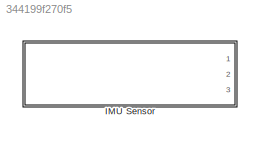
MODEL slx_344199f270f5
KIND library
CONFIG AbsTol = auto
CONFIG EnableMultiTasking = off
CONFIG FixedStep = auto
CONFIG MaxStep = auto
CONFIG MinStep = auto
CONFIG RelTol = 1e-3
CONFIG SampleTimeConstraint = Unconstrained
CONFIG Solver = VariableStepAuto
CONFIG SolverName = VariableStepAuto
CONFIG StartTime = 0.0
CONFIG StopTime = 10.0
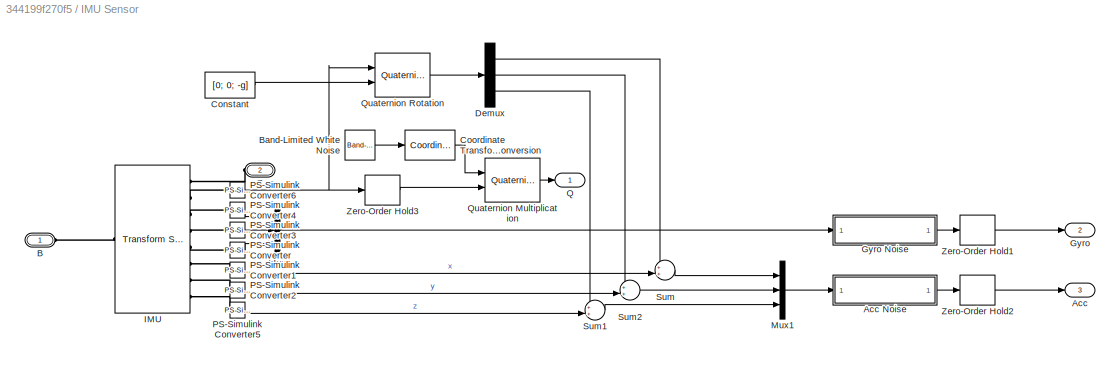
BLOCK [SubSystem] IMU Sensor
  Ports = [0, 3, 0, 0, 0, 2]
  RequestExecContextInheritance = off
BLOCK [Outport] IMU Sensor/Acc
  IconDisplay = Port number
  Port = 3
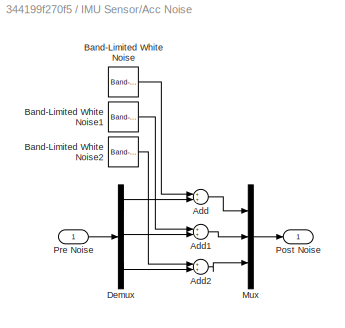
BLOCK [SubSystem] IMU Sensor/Acc Noise
  Commented = through
  Ports = [1, 1]
  RequestExecContextInheritance = off
BLOCK [Sum] IMU Sensor/Acc Noise/Add
  InputSameDT = off
  Inputs = 2
  OutDataTypeStr = Inherit: Inherit via internal rule
  Ports = [2, 1]
  SaturateOnIntegerOverflow = off
BLOCK [Sum] IMU Sensor/Acc Noise/Add1
  InputSameDT = off
  Inputs = 2
  OutDataTypeStr = Inherit: Inherit via internal rule
  Ports = [2, 1]
  SaturateOnIntegerOverflow = off
BLOCK [Sum] IMU Sensor/Acc Noise/Add2
  InputSameDT = off
  Inputs = 2
  OutDataTypeStr = Inherit: Inherit via internal rule
  Ports = [2, 1]
  SaturateOnIntegerOverflow = off
BLOCK [Reference] IMU Sensor/Acc Noise/Band-Limited White Noise  REF=simulink/Sources/Band-Limited
White Noise
  Ports = [0, 1]
  SourceBlock = simulink/Sources/Band-Limited\nWhite Noise
  SourceProductBaseCode = SL
  SourceProductName = Simulink
  SourceType = Band-Limited White Noise.
BLOCK [Reference] IMU Sensor/Acc Noise/Band-Limited White Noise1  REF=simulink/Sources/Band-Limited
White Noise
  Ports = [0, 1]
  SourceBlock = simulink/Sources/Band-Limited\nWhite Noise
  SourceProductBaseCode = SL
  SourceProductName = Simulink
  SourceType = Band-Limited White Noise.
BLOCK [Reference] IMU Sensor/Acc Noise/Band-Limited White Noise2  REF=simulink/Sources/Band-Limited
White Noise
  Ports = [0, 1]
  SourceBlock = simulink/Sources/Band-Limited\nWhite Noise
  SourceProductBaseCode = SL
  SourceProductName = Simulink
  SourceType = Band-Limited White Noise.
BLOCK [Demux] IMU Sensor/Acc Noise/Demux
  DisplayOption = bar
  Outputs = 3
  Ports = [1, 3]
BLOCK [Mux] IMU Sensor/Acc Noise/Mux
  DisplayOption = bar
  Inputs = 3
  Ports = [3, 1]
BLOCK [Outport] IMU Sensor/Acc Noise/Post Noise
  IconDisplay = Port number
BLOCK [Inport] IMU Sensor/Acc Noise/Pre Noise
  IconDisplay = Port number
BLOCK [PMIOPort] IMU Sensor/B
  Side = Left
BLOCK [Reference] IMU Sensor/Band-Limited White Noise  REF=simulink/Sources/Band-Limited
White Noise
  Ports = [0, 1]
  SourceBlock = simulink/Sources/Band-Limited\nWhite Noise
  SourceProductBaseCode = SL
  SourceProductName = Simulink
  SourceType = Band-Limited White Noise.
BLOCK [Constant] IMU Sensor/Constant
  Value = [0; 0; -g]
BLOCK [Reference] IMU Sensor/Coordinate Transformation Conversion  REF=robotcorelib/Coordinate Transformation Conversion
  Ports = [1, 1]
  SourceBlock = robotcorelib/Coordinate Transformation Conversion
  SourceProductBaseCode = RO
  SourceProductName = Robotics System Toolbox
  SourceType = robotics.slcore.internal.block.CoordinateTransformationConversion
BLOCK [Demux] IMU Sensor/Demux
  DisplayOption = bar
  Outputs = 3
  Ports = [1, 3]
BLOCK [PMIOPort] IMU Sensor/F
  Port = 2
  Side = Left
BLOCK [Outport] IMU Sensor/Gyro
  IconDisplay = Port number
  Port = 2
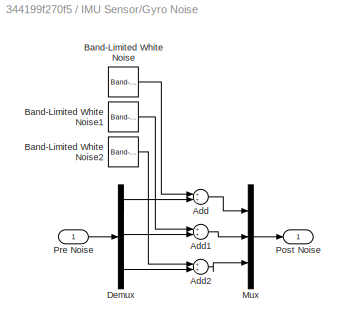
BLOCK [SubSystem] IMU Sensor/Gyro Noise
  Commented = through
  Ports = [1, 1]
  RequestExecContextInheritance = off
BLOCK [Sum] IMU Sensor/Gyro Noise/Add
  InputSameDT = off
  Inputs = 2
  OutDataTypeStr = Inherit: Inherit via internal rule
  Ports = [2, 1]
  SaturateOnIntegerOverflow = off
BLOCK [Sum] IMU Sensor/Gyro Noise/Add1
  InputSameDT = off
  Inputs = 2
  OutDataTypeStr = Inherit: Inherit via internal rule
  Ports = [2, 1]
  SaturateOnIntegerOverflow = off
BLOCK [Sum] IMU Sensor/Gyro Noise/Add2
  InputSameDT = off
  Inputs = 2
  OutDataTypeStr = Inherit: Inherit via internal rule
  Ports = [2, 1]
  SaturateOnIntegerOverflow = off
BLOCK [Reference] IMU Sensor/Gyro Noise/Band-Limited White Noise  REF=simulink/Sources/Band-Limited
White Noise
  Ports = [0, 1]
  SourceBlock = simulink/Sources/Band-Limited\nWhite Noise
  SourceProductBaseCode = SL
  SourceProductName = Simulink
  SourceType = Band-Limited White Noise.
BLOCK [Reference] IMU Sensor/Gyro Noise/Band-Limited White Noise1  REF=simulink/Sources/Band-Limited
White Noise
  Ports = [0, 1]
  SourceBlock = simulink/Sources/Band-Limited\nWhite Noise
  SourceProductBaseCode = SL
  SourceProductName = Simulink
  SourceType = Band-Limited White Noise.
BLOCK [Reference] IMU Sensor/Gyro Noise/Band-Limited White Noise2  REF=simulink/Sources/Band-Limited
White Noise
  Ports = [0, 1]
  SourceBlock = simulink/Sources/Band-Limited\nWhite Noise
  SourceProductBaseCode = SL
  SourceProductName = Simulink
  SourceType = Band-Limited White Noise.
BLOCK [Demux] IMU Sensor/Gyro Noise/Demux
  DisplayOption = bar
  Outputs = 3
  Ports = [1, 3]
BLOCK [Mux] IMU Sensor/Gyro Noise/Mux
  DisplayOption = bar
  Inputs = 3
  Ports = [3, 1]
BLOCK [Outport] IMU Sensor/Gyro Noise/Post Noise
  IconDisplay = Port number
BLOCK [Inport] IMU Sensor/Gyro Noise/Pre Noise
  IconDisplay = Port number
BLOCK [Reference] IMU Sensor/IMU  REF=sm_lib/Frames and
Transforms/Transform
Sensor
  Ports = [0, 0, 0, 0, 0, 1, 8]
  SourceBlock = sm_lib/Frames and\nTransforms/Transform\nSensor
  SourceProductBaseCode = MS
  SourceProductName = Simscape Multibody
  SourceType = Transform\nSensor
BLOCK [Mux] IMU Sensor/Mux
  DisplayOption = bar
  Inputs = 3
  Ports = [3, 1]
BLOCK [Mux] IMU Sensor/Mux1
  DisplayOption = bar
  Inputs = 3
  Ports = [3, 1]
BLOCK [Reference] IMU Sensor/PS-Simulink Converter  REF=nesl_utility/PS-Simulink
Converter
  Ports = [0, 1, 0, 0, 0, 1]
  SourceBlock = nesl_utility/PS-Simulink\nConverter
  SourceProductBaseCode = SS
  SourceProductName = Simscape
  SourceType = PS-Simulink\nConverter
BLOCK [Reference] IMU Sensor/PS-Simulink Converter1  REF=nesl_utility/PS-Simulink
Converter
  Ports = [0, 1, 0, 0, 0, 1]
  SourceBlock = nesl_utility/PS-Simulink\nConverter
  SourceProductBaseCode = SS
  SourceProductName = Simscape
  SourceType = PS-Simulink\nConverter
BLOCK [Reference] IMU Sensor/PS-Simulink Converter2  REF=nesl_utility/PS-Simulink
Converter
  Ports = [0, 1, 0, 0, 0, 1]
  SourceBlock = nesl_utility/PS-Simulink\nConverter
  SourceProductBaseCode = SS
  SourceProductName = Simscape
  SourceType = PS-Simulink\nConverter
BLOCK [Reference] IMU Sensor/PS-Simulink Converter3  REF=nesl_utility/PS-Simulink
Converter
  Ports = [0, 1, 0, 0, 0, 1]
  SourceBlock = nesl_utility/PS-Simulink\nConverter
  SourceProductBaseCode = SS
  SourceProductName = Simscape
  SourceType = PS-Simulink\nConverter
BLOCK [Reference] IMU Sensor/PS-Simulink Converter4  REF=nesl_utility/PS-Simulink
Converter
  Ports = [0, 1, 0, 0, 0, 1]
  SourceBlock = nesl_utility/PS-Simulink\nConverter
  SourceProductBaseCode = SS
  SourceProductName = Simscape
  SourceType = PS-Simulink\nConverter
BLOCK [Reference] IMU Sensor/PS-Simulink Converter5  REF=nesl_utility/PS-Simulink
Converter
  Ports = [0, 1, 0, 0, 0, 1]
  SourceBlock = nesl_utility/PS-Simulink\nConverter
  SourceProductBaseCode = SS
  SourceProductName = Simscape
  SourceType = PS-Simulink\nConverter
BLOCK [Reference] IMU Sensor/PS-Simulink Converter6  REF=nesl_utility/PS-Simulink
Converter
  Ports = [0, 1, 0, 0, 0, 1]
  SourceBlock = nesl_utility/PS-Simulink\nConverter
  SourceProductBaseCode = SS
  SourceProductName = Simscape
  SourceType = PS-Simulink\nConverter
BLOCK [Outport] IMU Sensor/Q
  IconDisplay = Port number
BLOCK [Reference] IMU Sensor/Quaternion Multiplication  REF=aerolibutil/Quaternion
Multiplication
  Ports = [2, 1]
  SourceBlock = aerolibutil/Quaternion\nMultiplication
  SourceProductBaseCode = AE
  SourceProductName = Aerospace Blockset
  SourceType = Quaternion Multiplication
BLOCK [Reference] IMU Sensor/Quaternion Rotation  REF=aerolibutil/Quaternion
Rotation
  Ports = [2, 1]
  SourceBlock = aerolibutil/Quaternion\nRotation
  SourceProductBaseCode = AE
  SourceProductName = Aerospace Blockset
  SourceType = Quaternion Rotation
BLOCK [Sum] IMU Sensor/Sum
  IconShape = round
  InputSameDT = off
  Inputs = ++|
  OutDataTypeStr = Inherit: Inherit via internal rule
  Ports = [2, 1]
  SaturateOnIntegerOverflow = off
BLOCK [Sum] IMU Sensor/Sum1
  IconShape = round
  InputSameDT = off
  Inputs = ++|
  OutDataTypeStr = Inherit: Inherit via internal rule
  Ports = [2, 1]
  SaturateOnIntegerOverflow = off
BLOCK [Sum] IMU Sensor/Sum2
  IconShape = round
  InputSameDT = off
  Inputs = ++|
  OutDataTypeStr = Inherit: Inherit via internal rule
  Ports = [2, 1]
  SaturateOnIntegerOverflow = off
BLOCK [ZeroOrderHold] IMU Sensor/Zero-Order Hold1
  SampleTime = 1/imu_sample_rate
BLOCK [ZeroOrderHold] IMU Sensor/Zero-Order Hold2
  SampleTime = 1/imu_sample_rate
BLOCK [ZeroOrderHold] IMU Sensor/Zero-Order Hold3
  SampleTime = 1/imu_sample_rate
LINE IMU Sensor/Acc Noise/Add1:1 -> IMU Sensor/Acc Noise/Mux:2
LINE IMU Sensor/Acc Noise/Add2:1 -> IMU Sensor/Acc Noise/Mux:3
LINE IMU Sensor/Acc Noise/Add:1 -> IMU Sensor/Acc Noise/Mux:1
LINE IMU Sensor/Acc Noise/Band-Limited White Noise1:1 -> IMU Sensor/Acc Noise/Add1:1
LINE IMU Sensor/Acc Noise/Band-Limited White Noise2:1 -> IMU Sensor/Acc Noise/Add2:1
LINE IMU Sensor/Acc Noise/Band-Limited White Noise:1 -> IMU Sensor/Acc Noise/Add:1
LINE IMU Sensor/Acc Noise/Demux:1 -> IMU Sensor/Acc Noise/Add:2
LINE IMU Sensor/Acc Noise/Demux:2 -> IMU Sensor/Acc Noise/Add1:2
LINE IMU Sensor/Acc Noise/Demux:3 -> IMU Sensor/Acc Noise/Add2:2
LINE IMU Sensor/Acc Noise/Mux:1 -> IMU Sensor/Acc Noise/Post Noise:1
LINE IMU Sensor/Acc Noise/Pre Noise:1 -> IMU Sensor/Acc Noise/Demux:1
LINE IMU Sensor/Acc Noise:1 -> IMU Sensor/Zero-Order Hold2:1
LINE IMU Sensor/Band-Limited White Noise:1 -> IMU Sensor/Coordinate Transformation Conversion:1
LINE IMU Sensor/Constant:1 -> IMU Sensor/Quaternion Rotation:2
LINE IMU Sensor/Coordinate Transformation Conversion:1 -> IMU Sensor/Quaternion Multiplication:1
LINE IMU Sensor/Demux:1 -> IMU Sensor/Sum:1
LINE IMU Sensor/Demux:2 -> IMU Sensor/Sum2:1
LINE IMU Sensor/Demux:3 -> IMU Sensor/Sum1:1
LINE IMU Sensor/Gyro Noise/Add1:1 -> IMU Sensor/Gyro Noise/Mux:2
LINE IMU Sensor/Gyro Noise/Add2:1 -> IMU Sensor/Gyro Noise/Mux:3
LINE IMU Sensor/Gyro Noise/Add:1 -> IMU Sensor/Gyro Noise/Mux:1
LINE IMU Sensor/Gyro Noise/Band-Limited White Noise1:1 -> IMU Sensor/Gyro Noise/Add1:1
LINE IMU Sensor/Gyro Noise/Band-Limited White Noise2:1 -> IMU Sensor/Gyro Noise/Add2:1
LINE IMU Sensor/Gyro Noise/Band-Limited White Noise:1 -> IMU Sensor/Gyro Noise/Add:1
LINE IMU Sensor/Gyro Noise/Demux:1 -> IMU Sensor/Gyro Noise/Add:2
LINE IMU Sensor/Gyro Noise/Demux:2 -> IMU Sensor/Gyro Noise/Add1:2
LINE IMU Sensor/Gyro Noise/Demux:3 -> IMU Sensor/Gyro Noise/Add2:2
LINE IMU Sensor/Gyro Noise/Mux:1 -> IMU Sensor/Gyro Noise/Post Noise:1
LINE IMU Sensor/Gyro Noise/Pre Noise:1 -> IMU Sensor/Gyro Noise/Demux:1
LINE IMU Sensor/Gyro Noise:1 -> IMU Sensor/Zero-Order Hold1:1
LINE IMU Sensor/Mux1:1 -> IMU Sensor/Acc Noise:1
LINE IMU Sensor/Mux:1 -> IMU Sensor/Gyro Noise:1
LINE IMU Sensor/PS-Simulink Converter1:1 -> IMU Sensor/Sum:2
LINE IMU Sensor/PS-Simulink Converter2:1 -> IMU Sensor/Sum2:2
LINE IMU Sensor/PS-Simulink Converter3:1 -> IMU Sensor/Mux:2
LINE IMU Sensor/PS-Simulink Converter4:1 -> IMU Sensor/Mux:1
LINE IMU Sensor/PS-Simulink Converter5:1 -> IMU Sensor/Sum1:2
NET IMU Sensor/PS-Simulink Converter6:1 -> IMU Sensor/Quaternion Rotation:1, IMU Sensor/Zero-Order Hold3:1
LINE IMU Sensor/PS-Simulink Converter:1 -> IMU Sensor/Mux:3
LINE IMU Sensor/Quaternion Multiplication:1 -> IMU Sensor/Q:1
LINE IMU Sensor/Quaternion Rotation:1 -> IMU Sensor/Demux:1
LINE IMU Sensor/Sum1:1 -> IMU Sensor/Mux1:3
LINE IMU Sensor/Sum2:1 -> IMU Sensor/Mux1:2
LINE IMU Sensor/Sum:1 -> IMU Sensor/Mux1:1
LINE IMU Sensor/Zero-Order Hold1:1 -> IMU Sensor/Gyro:1
LINE IMU Sensor/Zero-Order Hold2:1 -> IMU Sensor/Acc:1
LINE IMU Sensor/Zero-Order Hold3:1 -> IMU Sensor/Quaternion Multiplication:2
PLINE IMU Sensor/B:RConn1 -- IMU Sensor/IMU:LConn1
PLINE IMU Sensor/F:RConn1 -- IMU Sensor/IMU:RConn1
PLINE IMU Sensor/IMU:RConn2 -- IMU Sensor/PS-Simulink Converter6:LConn1
PLINE IMU Sensor/IMU:RConn3 -- IMU Sensor/PS-Simulink Converter4:LConn1
PLINE IMU Sensor/IMU:RConn4 -- IMU Sensor/PS-Simulink Converter3:LConn1
PLINE IMU Sensor/IMU:RConn5 -- IMU Sensor/PS-Simulink Converter:LConn1
PLINE IMU Sensor/IMU:RConn6 -- IMU Sensor/PS-Simulink Converter1:LConn1
PLINE IMU Sensor/IMU:RConn7 -- IMU Sensor/PS-Simulink Converter2:LConn1
PLINE IMU Sensor/IMU:RConn8 -- IMU Sensor/PS-Simulink Converter5:LConn1
note: NET lines group one-source signal fan-out (src -> all destinations, sorted); 1:1 wires keep LINE
